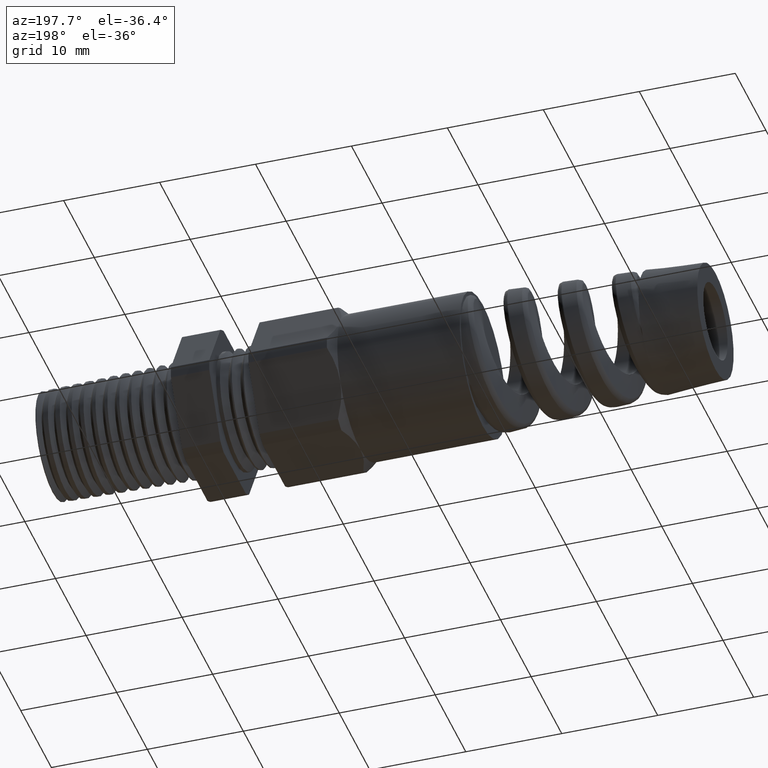
[diagram: clean part render]
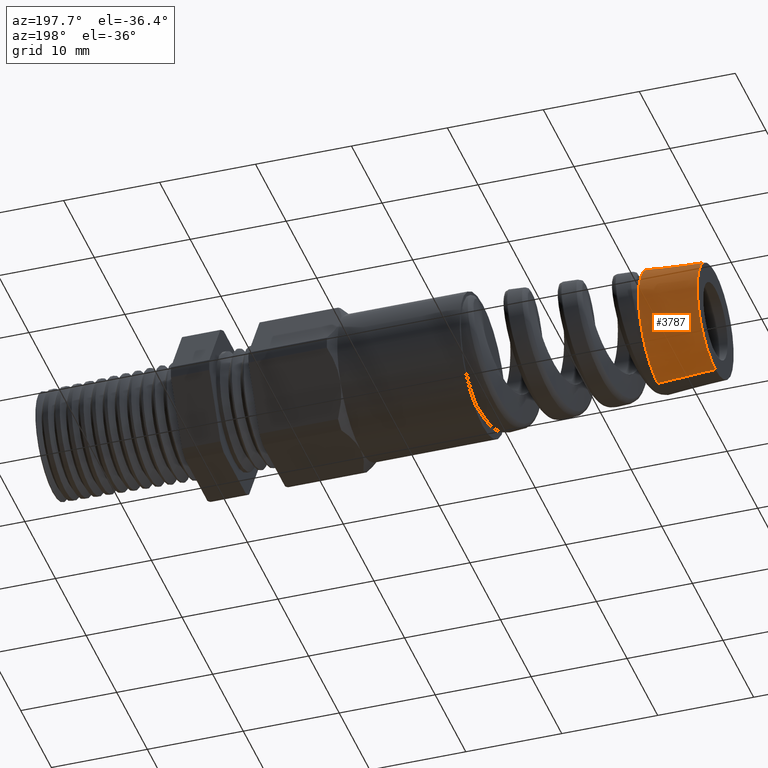
[diagram: same view with one face highlighted and labeled with its STEP entity id]
A machine part, auxiliary view. The second image highlights one B-rep face of the part: STEP entity #3787.
In plain terms, the highlighted conical surface has half-angle 3.5 deg.
Its self-contained STEP definition (entity closure, byte-faithful):
#169 = CARTESIAN_POINT ( 'NONE',  ( -2.439999999999999900, 0.0000000000000000000, 0.0000000000000000000 ) ) ;
#363 = DIRECTION ( 'NONE',  ( 0.0000000000000000000, 0.0000000000000000000, 1.000000000000000000 ) ) ;
#364 = DIRECTION ( 'NONE',  ( -1.000000000000000000, 0.0000000000000000000, 0.0000000000000000000 ) ) ;
#365 = AXIS2_PLACEMENT_3D ( 'NONE', #169, #364, #363 ) ;
#366 = CIRCLE ( 'NONE', #365, 0.2341065197523261300 ) ;
#2737 = DIRECTION ( 'NONE',  ( 0.0000000000000000000, 0.0000000000000000000, -1.000000000000000000 ) ) ;
#2738 = DIRECTION ( 'NONE',  ( 1.000000000000000000, 0.0000000000000000000, 0.0000000000000000000 ) ) ;
#2739 = CARTESIAN_POINT ( 'NONE',  ( -2.203779527559055000, 0.0000000000000000000, 0.0000000000000000000 ) ) ;
#2740 = AXIS2_PLACEMENT_3D ( 'NONE', #2739, #2738, #2737 ) ;
#2741 = CIRCLE ( 'NONE', #2740, 0.2485543827799998300 ) ;
#2882 = CARTESIAN_POINT ( 'NONE',  ( -2.203779527559055000, 0.1932692645669722700, -0.1562890673492178300 ) ) ;
#2936 = CARTESIAN_POINT ( 'NONE',  ( -2.203779527559055000, -3.043913292855725100E-017, -0.2485543827799996100 ) ) ;
#3787 = ADVANCED_FACE ( 'NONE', ( #7802 ), #7801, .T. ) ;
#3788 = EDGE_LOOP ( 'NONE', ( #3789, #3790, #3791, #3810, #3812 ) ) ;
#3789 = ORIENTED_EDGE ( 'NONE', *, *, #4286, .F. ) ;
#3790 = ORIENTED_EDGE ( 'NONE', *, *, #3870, .F. ) ;
#3791 = ORIENTED_EDGE ( 'NONE', *, *, #4366, .T. ) ;
#3810 = ORIENTED_EDGE ( 'NONE', *, *, #3811, .T. ) ;
#3811 = EDGE_CURVE ( 'NONE', #4391, #4019, #7716, .T. ) ;
#3812 = ORIENTED_EDGE ( 'NONE', *, *, #4048, .F. ) ;
#3870 = EDGE_CURVE ( 'NONE', #4283, #4402, #366, .T. ) ;
#4019 = VERTEX_POINT ( 'NONE', #2882 ) ;
#4048 = EDGE_CURVE ( 'NONE', #4067, #4019, #2741, .T. ) ;
#4067 = VERTEX_POINT ( 'NONE', #2936 ) ;
#4283 = VERTEX_POINT ( 'NONE', #5799 ) ;
#4286 = EDGE_CURVE ( 'NONE', #4402, #4067, #5796, .T. ) ;
#4366 = EDGE_CURVE ( 'NONE', #4283, #4391, #6105, .T. ) ;
#4391 = VERTEX_POINT ( 'NONE', #6314 ) ;
#4402 = VERTEX_POINT ( 'NONE', #6367 ) ;
#5793 = DIRECTION ( 'NONE',  ( 0.9981347984218669200, -7.476289853398327700E-018, -0.06104853953485701200 ) ) ;
#5794 = VECTOR ( 'NONE', #5793, 39.37007874015748900 ) ;
#5795 = CARTESIAN_POINT ( 'NONE',  ( -2.203779527559055000, -3.043913292855725100E-017, -0.2485543827799996100 ) ) ;
#5796 = LINE ( 'NONE', #5795, #5794 ) ;
#5799 = CARTESIAN_POINT ( 'NONE',  ( -2.439999999999999900, 0.0000000000000000000, 0.2341065197523261300 ) ) ;
#6102 = DIRECTION ( 'NONE',  ( 0.9981347984218669200, 0.0000000000000000000, 0.06104853953485701200 ) ) ;
#6103 = VECTOR ( 'NONE', #6102, 39.37007874015748900 ) ;
#6104 = CARTESIAN_POINT ( 'NONE',  ( -2.203779527559055000, 0.0000000000000000000, 0.2485543827799996100 ) ) ;
#6105 = LINE ( 'NONE', #6104, #6103 ) ;
#6314 = CARTESIAN_POINT ( 'NONE',  ( -2.203779527559055000, 0.0000000000000000000, 0.2485543827799996100 ) ) ;
#6367 = CARTESIAN_POINT ( 'NONE',  ( -2.439999999999999900, -2.955445646798926800E-017, -0.2341065197523261300 ) ) ;
#7706 = DIRECTION ( 'NONE',  ( 0.0000000000000000000, 0.0000000000000000000, 1.000000000000000000 ) ) ;
#7708 = DIRECTION ( 'NONE',  ( -1.000000000000000000, 0.0000000000000000000, 0.0000000000000000000 ) ) ;
#7709 = CARTESIAN_POINT ( 'NONE',  ( -2.203779527559055000, 0.0000000000000000000, 0.0000000000000000000 ) ) ;
#7711 = AXIS2_PLACEMENT_3D ( 'NONE', #7709, #7708, #7706 ) ;
#7716 = CIRCLE ( 'NONE', #7711, 0.2485543827799996100 ) ;
#7797 = DIRECTION ( 'NONE',  ( 0.0000000000000000000, 0.0000000000000000000, 1.000000000000000000 ) ) ;
#7798 = DIRECTION ( 'NONE',  ( 1.000000000000000000, 0.0000000000000000000, 0.0000000000000000000 ) ) ;
#7799 = CARTESIAN_POINT ( 'NONE',  ( -2.203779527559055000, 0.0000000000000000000, 0.0000000000000000000 ) ) ;
#7800 = AXIS2_PLACEMENT_3D ( 'NONE', #7799, #7798, #7797 ) ;
#7801 = CONICAL_SURFACE ( 'NONE', #7800, 0.2485543827799996100, 0.06108652381980166800 ) ;
#7802 = FACE_OUTER_BOUND ( 'NONE', #3788, .T. ) ;